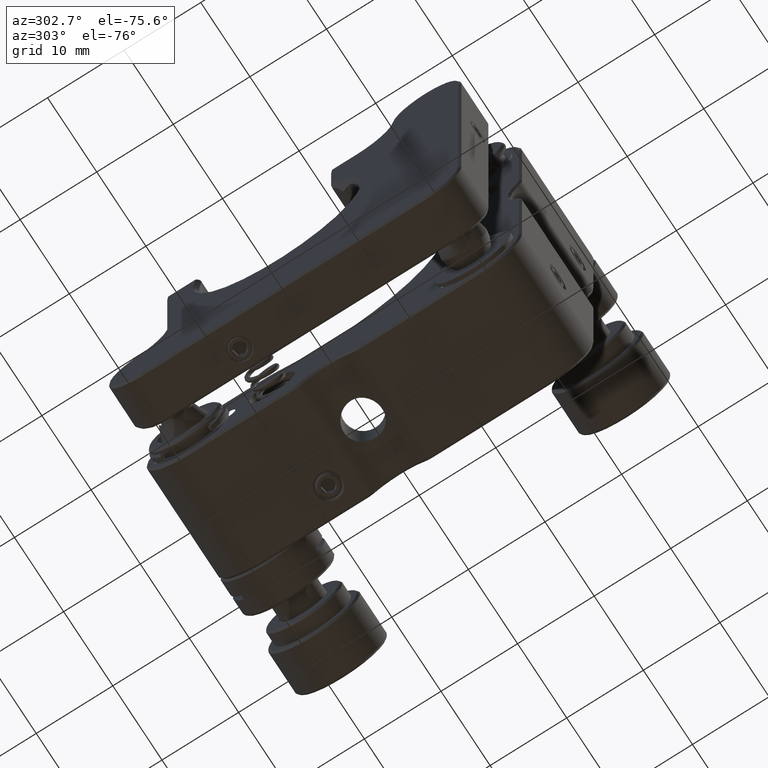
[diagram: clean part render]
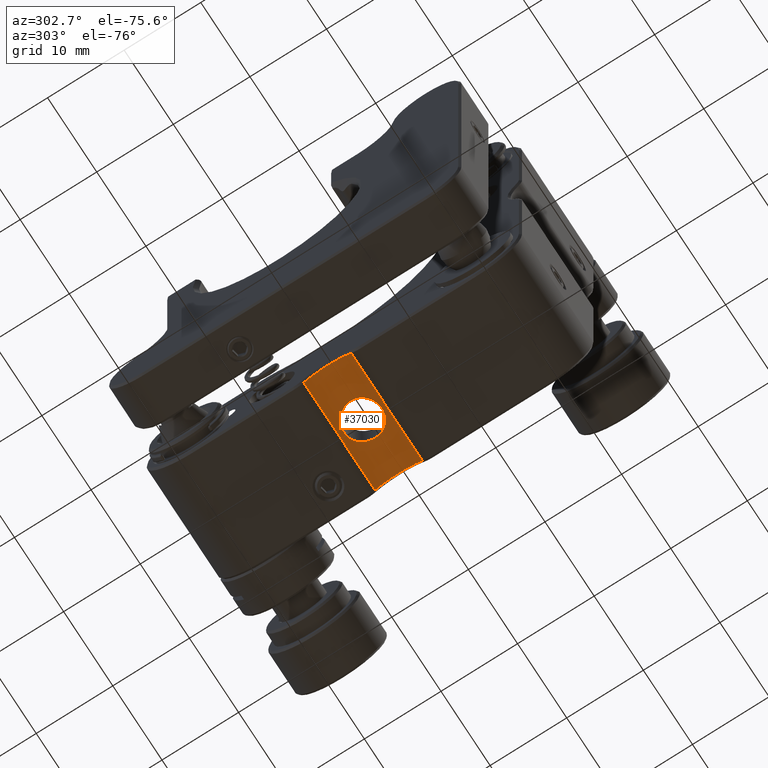
[diagram: same view with one face highlighted and labeled with its STEP entity id]
A machine part, auxiliary view. The second image highlights one B-rep face of the part: STEP entity #37030.
In plain terms, the highlighted cylindrical surface (partial cylindrical patch) has radius 5 mm, axis along (1, -0, -0).
Its self-contained STEP definition (entity closure, byte-faithful):
#109 = EDGE_CURVE ( 'NONE', #15219, #10882, #23746, .T. ) ;
#368 = CARTESIAN_POINT ( 'NONE',  ( -7.500000000000000000, 0.9000000000000047962, -28.00000000000003553 ) ) ;
#959 = ORIENTED_EDGE ( 'NONE', *, *, #12044, .T. ) ;
#1320 = CARTESIAN_POINT ( 'NONE',  ( -7.500000000000000000, -2.192947870658590315, -24.07142857142859071 ) ) ;
#2012 = CARTESIAN_POINT ( 'NONE',  ( 2.500000000000044409, 0.9000000000000132339, -23.00000000000006750 ) ) ;
#2245 = CARTESIAN_POINT ( 'NONE',  ( -0.1680513724483715943, 3.399819543785310039, -23.66976879471484452 ) ) ;
#2297 = ORIENTED_EDGE ( 'NONE', *, *, #40966, .T. ) ;
#2454 = CARTESIAN_POINT ( 'NONE',  ( -2.241198222593905331, 2.019956928764248705, -23.12457329490582936 ) ) ;
#2607 = VERTEX_POINT ( 'NONE', #13904 ) ;
#2743 = CARTESIAN_POINT ( 'NONE',  ( 0.6567382893752116146, -1.517846496249416477, -23.62330887043403393 ) ) ;
#2943 = CARTESIAN_POINT ( 'NONE',  ( -2.179896069144526383, -0.3664812065644198480, -23.15339113096646528 ) ) ;
#3149 = CARTESIAN_POINT ( 'NONE',  ( -0.6560736019765047722, -1.518016639239596399, -23.62340349663088190 ) ) ;
#3293 = CARTESIAN_POINT ( 'NONE',  ( 2.416624781364069996, 1.561325713199152254, -23.04124537750320556 ) ) ;
#4021 = EDGE_CURVE ( 'NONE', #10882, #15219, #23148, .T. ) ;
#4052 = DIRECTION ( 'NONE',  ( -1.000000000000000000, -0.000000000000000000, -0.000000000000000000 ) ) ;
#4795 = CARTESIAN_POINT ( 'NONE',  ( -1.527954335208924874, 2.885301638328107821, -23.40997080879699865 ) ) ;
#5082 = CARTESIAN_POINT ( 'NONE',  ( 2.500000000000044409, 0.9000000000000132339, -23.00000000000006750 ) ) ;
#5209 = CIRCLE ( 'NONE', #36566, 4.999999999999945821 ) ;
#5225 = CARTESIAN_POINT ( 'NONE',  ( -1.259900753351761882, 3.065344577044422092, -23.49210986891781516 ) ) ;
#5355 = AXIS2_PLACEMENT_3D ( 'NONE', #368, #13377, #32806 ) ;
#5513 = CARTESIAN_POINT ( 'NONE',  ( 1.992725077467057737, -0.6433205486138591223, -23.23798513979520308 ) ) ;
#5641 = CARTESIAN_POINT ( 'NONE',  ( 1.982361977799851793, 2.431754717011606726, -23.23836832939444719 ) ) ;
#5929 = CARTESIAN_POINT ( 'NONE',  ( -2.368592884538264443, 0.08375976145019459196, -23.06470366472636968 ) ) ;
#6136 = CARTESIAN_POINT ( 'NONE',  ( -1.259829007980962867, -1.265405156948511411, -23.49213538316365657 ) ) ;
#6552 = CARTESIAN_POINT ( 'NONE',  ( 0.3328995103112490916, -1.583236753954723186, -23.66007579019456131 ) ) ;
#6587 = EDGE_CURVE ( 'NONE', #2607, #40816, #38558, .T. ) ;
#7470 = EDGE_LOOP ( 'NONE', ( #959, #33293, #2297, #18514, #20482 ) ) ;
#8413 = CARTESIAN_POINT ( 'NONE',  ( -1.651538140624332796, 2.783675036361735966, -23.36680655116172645 ) ) ;
#8843 = CARTESIAN_POINT ( 'NONE',  ( 1.265925903659040008, 3.080549252995903320, -23.49828168996446109 ) ) ;
#9551 = CARTESIAN_POINT ( 'NONE',  ( 1.116153814687535606, -1.342891143699911805, -23.53072240408002358 ) ) ;
#9759 = CARTESIAN_POINT ( 'NONE',  ( -0.1639654103524469664, -1.600159545158245766, -23.66996509446046915 ) ) ;
#9767 = EDGE_LOOP ( 'NONE', ( #39917, #39726 ) ) ;
#10005 = CARTESIAN_POINT ( 'NONE',  ( -2.499999999999996003, 0.9000000000000052403, -23.00000000000009237 ) ) ;
#10699 = CARTESIAN_POINT ( 'NONE',  ( -7.249999999999992895, 3.992947870658599907, -24.07142857142859071 ) ) ;
#10882 = VERTEX_POINT ( 'NONE', #2012 ) ;
#11158 = CARTESIAN_POINT ( 'NONE',  ( -7.249999999999992895, 0.9000000000000047962, -23.00000000000009237 ) ) ;
#11269 = CIRCLE ( 'NONE', #34449, 4.999999999999945821 ) ;
#11836 = CARTESIAN_POINT ( 'NONE',  ( -1.115343402808019579, 3.143272458086579402, -23.53091646371035139 ) ) ;
#12044 = EDGE_CURVE ( 'NONE', #39420, #2607, #18533, .T. ) ;
#12478 = CARTESIAN_POINT ( 'NONE',  ( 2.500000000000044409, 0.9000000000000132339, -23.00000000000006750 ) ) ;
#12549 = CARTESIAN_POINT ( 'NONE',  ( -2.499999999999997335, 0.7340050088912724036, -23.00000000000009237 ) ) ;
#13377 = DIRECTION ( 'NONE',  ( 1.000000000000000000, -0.000000000000000000, -0.000000000000000000 ) ) ;
#13904 = CARTESIAN_POINT ( 'NONE',  ( -7.249999999999992895, -2.192947870658590315, -24.07142857142859071 ) ) ;
#13993 = CYLINDRICAL_SURFACE ( 'NONE', #5355, 4.999999999999945821 ) ;
#15219 = VERTEX_POINT ( 'NONE', #10005 ) ;
#15337 = CARTESIAN_POINT ( 'NONE',  ( 2.368371509797018160, 0.08291738989719273090, -23.06481493399380511 ) ) ;
#15957 = CARTESIAN_POINT ( 'NONE',  ( -2.499999999999996003, 0.9000000000000052403, -23.00000000000009237 ) ) ;
#16064 = DIRECTION ( 'NONE',  ( 1.000000000000000000, 0.000000000000000000, 0.000000000000000000 ) ) ;
#16171 = CARTESIAN_POINT ( 'NONE',  ( -2.483631555496001120, 0.5693082997807014101, -23.00824642049792246 ) ) ;
#16315 = CARTESIAN_POINT ( 'NONE',  ( 2.499999999999996003, 1.067951207280068093, -23.00000000000008882 ) ) ;
#17810 = CARTESIAN_POINT ( 'NONE',  ( -0.3344267445666533889, 3.383112035478107682, -23.66000029749318401 ) ) ;
#18023 = AXIS2_PLACEMENT_3D ( 'NONE', #20696, #4052, #40141 ) ;
#18025 = CARTESIAN_POINT ( 'NONE',  ( -2.417417120244494733, 1.558343380266073552, -23.04085795731602815 ) ) ;
#18248 = CARTESIAN_POINT ( 'NONE',  ( -0.6605570605117169203, 3.316888702035285075, -23.62277578818840951 ) ) ;
#18514 = ORIENTED_EDGE ( 'NONE', *, *, #18691, .T. ) ;
#18533 = LINE ( 'NONE', #1320, #35907 ) ;
#18666 = CARTESIAN_POINT ( 'NONE',  ( 2.162807336715365736, 2.164237299071670950, -23.16046358302396868 ) ) ;
#18691 = EDGE_CURVE ( 'NONE', #34898, #28106, #36134, .T. ) ;
#18709 = VECTOR ( 'NONE', #19072, 1000.000000000000000 ) ;
#19072 = DIRECTION ( 'NONE',  ( 1.000000000000000000, -0.000000000000000000, -0.000000000000000000 ) ) ;
#19168 = CARTESIAN_POINT ( 'NONE',  ( 1.258019116143709093, -1.266474721557944605, -23.49264833925372642 ) ) ;
#19262 = DIRECTION ( 'NONE',  ( -1.000000000000000000, -0.000000000000000000, -0.000000000000000000 ) ) ;
#19585 = CARTESIAN_POINT ( 'NONE',  ( -1.994470506521980546, -0.6411046984136331561, -23.23724906823781922 ) ) ;
#19695 = CARTESIAN_POINT ( 'NONE',  ( -7.500000000000000000, 3.992947870658599907, -24.07142857142859071 ) ) ;
#20482 = ORIENTED_EDGE ( 'NONE', *, *, #23261, .T. ) ;
#20696 = CARTESIAN_POINT ( 'NONE',  ( -7.249999999999992895, 0.9000000000000047962, -28.00000000000003553 ) ) ;
#21445 = CARTESIAN_POINT ( 'NONE',  ( -2.499999999999996003, 0.9000000000000052403, -23.00000000000009237 ) ) ;
#21745 = CARTESIAN_POINT ( 'NONE',  ( 2.483193827259734032, 0.5668372782008379573, -23.00846290625771573 ) ) ;
#21874 = CARTESIAN_POINT ( 'NONE',  ( -2.369045165799846142, 1.715412777460289417, -23.06449687657002556 ) ) ;
#22568 = CARTESIAN_POINT ( 'NONE',  ( -1.117474206570267414, -1.342359231612619386, -23.53044385606524003 ) ) ;
#22781 = CARTESIAN_POINT ( 'NONE',  ( -1.528290225760265297, -1.085063628434902672, -23.40986434965925156 ) ) ;
#23148 = B_SPLINE_CURVE_WITH_KNOTS ( 'NONE', 3,
 ( #5082, #24721, #21745, #37965, #15337, #34763, #5513, #28358, #42009, #19168, #9551, #35177, #2743, #6552, #32186, #9759, #39217, #3149, #31980, #22568, #6136, #22781, #28982, #19585, #2943, #5929, #38799, #16171, #12549, #15957 ),
 .UNSPECIFIED., .F., .F.,
 ( 4, 2, 2, 2, 2, 2, 2, 2, 2, 2, 2, 2, 2, 2, 4 ),
 ( 1.743409229905930116E-17, 0.0004970285715037266660, 0.0009940571430074357680, 0.001988114286014854622, 0.002485142857518564050, 0.002982171429022273477, 0.003479200000525982904, 0.003976228572029692765, 0.004473257143533401758, 0.004970285715037110752, 0.005467314286540819745, 0.005964342858044529606, 0.006958400001051948461, 0.007455428572555659189, 0.007952457144059368183 ),
 .UNSPECIFIED. ) ;
#23261 = EDGE_CURVE ( 'NONE', #28106, #39420, #5209, .T. ) ;
#23746 = B_SPLINE_CURVE_WITH_KNOTS ( 'NONE', 3,
 ( #21445, #34044, #24641, #18025, #21874, #2454, #31051, #31487, #37671, #8413, #4795, #5225, #11836, #28069, #18248, #17810, #2245, #41299, #31278, #41087, #38100, #8843, #34894, #27630, #5641, #18666, #31691, #29339, #3293, #41727, #16315, #12478 ),
 .UNSPECIFIED., .F., .F.,
 ( 4, 2, 2, 2, 2, 2, 2, 2, 2, 2, 2, 2, 2, 2, 2, 4 ),
 ( 0.007952457144059368183, 0.008448620157723638405, 0.008944783171387908627, 0.009440946185052177114, 0.009937109198716447336, 0.01043327221238071756, 0.01092943522604498605, 0.01142559823970925627, 0.01192176125337352649, 0.01241792426703779671, 0.01291408728070206693, 0.01390641330803060738, 0.01440257632169487934, 0.01489873933535914956, 0.01539490234902341978, 0.01589106536268768827 ),
 .UNSPECIFIED. ) ;
#24641 = CARTESIAN_POINT ( 'NONE',  ( -2.483050255583886923, 1.234339599563281764, -23.00853500082193648 ) ) ;
#24721 = CARTESIAN_POINT ( 'NONE',  ( 2.499999999999996003, 0.7317558013439198206, -23.00000000000009592 ) ) ;
#25014 = CARTESIAN_POINT ( 'NONE',  ( 7.249999999999985789, 3.992947870658599907, -24.07142857142859071 ) ) ;
#27630 = CARTESIAN_POINT ( 'NONE',  ( 1.880322709302358897, 2.555418525076580405, -23.28041982628787565 ) ) ;
#28069 = CARTESIAN_POINT ( 'NONE',  ( -0.8163972592195227751, 3.268492715322560027, -23.59599940588003619 ) ) ;
#28106 = VERTEX_POINT ( 'NONE', #25014 ) ;
#28358 = CARTESIAN_POINT ( 'NONE',  ( 1.652280257433594413, -0.9829943808811842931, -23.36653605574452897 ) ) ;
#28982 = CARTESIAN_POINT ( 'NONE',  ( -1.654173700914787437, -0.9813395335283051635, -23.36585913119256475 ) ) ;
#29339 = CARTESIAN_POINT ( 'NONE',  ( 2.368183451496915559, 1.717537088976909265, -23.06490345426119504 ) ) ;
#30220 = FACE_OUTER_BOUND ( 'NONE', #7470, .T. ) ;
#31051 = CARTESIAN_POINT ( 'NONE',  ( -2.163583977278332071, 2.162922674891539554, -23.16011620260952952 ) ) ;
#31278 = CARTESIAN_POINT ( 'NONE',  ( 0.3303424916450135584, 3.383629011707099732, -23.66029992207392851 ) ) ;
#31355 = DIRECTION ( 'NONE',  ( -1.000000000000000000, 0.000000000000000000, 0.000000000000000000 ) ) ;
#31487 = CARTESIAN_POINT ( 'NONE',  ( -1.983158416647166522, 2.430735772095312885, -23.23803645005279250 ) ) ;
#31651 = CARTESIAN_POINT ( 'NONE',  ( -7.249999999999992895, 0.9000000000000047962, -28.00000000000003553 ) ) ;
#31691 = CARTESIAN_POINT ( 'NONE',  ( 2.241730834383185211, 2.018616385528279267, -23.12432136111868530 ) ) ;
#31980 = CARTESIAN_POINT ( 'NONE',  ( -0.8148023780194089127, -1.469181422078541299, -23.59635532352334053 ) ) ;
#32186 = CARTESIAN_POINT ( 'NONE',  ( 0.1687950513001504615, -1.599838122298024246, -23.66977952100102556 ) ) ;
#32506 = CARTESIAN_POINT ( 'NONE',  ( 7.249999999999985789, 0.9000000000000047962, -28.00000000000003553 ) ) ;
#32806 = DIRECTION ( 'NONE',  ( 0.000000000000000000, 0.000000000000000000, -1.000000000000000000 ) ) ;
#33293 = ORIENTED_EDGE ( 'NONE', *, *, #6587, .T. ) ;
#34044 = CARTESIAN_POINT ( 'NONE',  ( -2.499999999999997335, 1.065705916648838958, -23.00000000000009237 ) ) ;
#34449 = AXIS2_PLACEMENT_3D ( 'NONE', #31651, #19262, #35274 ) ;
#34763 = CARTESIAN_POINT ( 'NONE',  ( 2.178174550397276921, -0.3699551285790431132, -23.15418567408422490 ) ) ;
#34894 = CARTESIAN_POINT ( 'NONE',  ( 1.537799280410937275, 2.897315525976589701, -23.40977988253845865 ) ) ;
#34898 = VERTEX_POINT ( 'NONE', #10699 ) ;
#35177 = CARTESIAN_POINT ( 'NONE',  ( 0.8166813769498428854, -1.468415408891004414, -23.59595511344316421 ) ) ;
#35274 = DIRECTION ( 'NONE',  ( 0.000000000000000000, 0.000000000000000000, -1.000000000000000000 ) ) ;
#35907 = VECTOR ( 'NONE', #31355, 1000.000000000000000 ) ;
#36134 = LINE ( 'NONE', #19695, #18709 ) ;
#36566 = AXIS2_PLACEMENT_3D ( 'NONE', #32506, #16064, #38268 ) ;
#36634 = FACE_BOUND ( 'NONE', #9767, .T. ) ;
#37030 = ADVANCED_FACE ( 'NONE', ( #36634, #30220 ), #13993, .F. ) ;
#37671 = CARTESIAN_POINT ( 'NONE',  ( -1.879054991724188328, 2.556792748241515145, -23.28091630013362590 ) ) ;
#37965 = CARTESIAN_POINT ( 'NONE',  ( 2.417829318641572023, 0.2432273080778255547, -23.04065633490204590 ) ) ;
#38100 = CARTESIAN_POINT ( 'NONE',  ( 0.8124051750091038082, 3.269987065617113942, -23.59679355404275114 ) ) ;
#38268 = DIRECTION ( 'NONE',  ( 0.000000000000000000, 0.000000000000000000, -1.000000000000000000 ) ) ;
#38558 = CIRCLE ( 'NONE', #18023, 4.999999999999945821 ) ;
#38799 = CARTESIAN_POINT ( 'NONE',  ( -2.417747648331619370, 0.2425207128461468187, -23.04069744963776500 ) ) ;
#39217 = CARTESIAN_POINT ( 'NONE',  ( -0.3325166400285455293, -1.583278019665560254, -23.66010003594688982 ) ) ;
#39420 = VERTEX_POINT ( 'NONE', #42217 ) ;
#39726 = ORIENTED_EDGE ( 'NONE', *, *, #109, .F. ) ;
#39917 = ORIENTED_EDGE ( 'NONE', *, *, #4021, .F. ) ;
#40141 = DIRECTION ( 'NONE',  ( 0.000000000000000000, -1.778091562876246599E-15, -1.000000000000000000 ) ) ;
#40816 = VERTEX_POINT ( 'NONE', #11158 ) ;
#40966 = EDGE_CURVE ( 'NONE', #40816, #34898, #11269, .T. ) ;
#41087 = CARTESIAN_POINT ( 'NONE',  ( 0.6557231658932133334, 3.318174178856932777, -23.62348957788806558 ) ) ;
#41299 = CARTESIAN_POINT ( 'NONE',  ( 0.1626387134922865907, 3.400177526526136251, -23.66997547598515439 ) ) ;
#41727 = CARTESIAN_POINT ( 'NONE',  ( 2.482743059042048284, 1.236769855568804921, -23.00868903298422552 ) ) ;
#42009 = CARTESIAN_POINT ( 'NONE',  ( 1.527005716418409209, -1.086071085776658451, -23.41029920855142521 ) ) ;
#42217 = CARTESIAN_POINT ( 'NONE',  ( 7.249999999999985789, -2.192947870658590315, -24.07142857142859071 ) ) ;